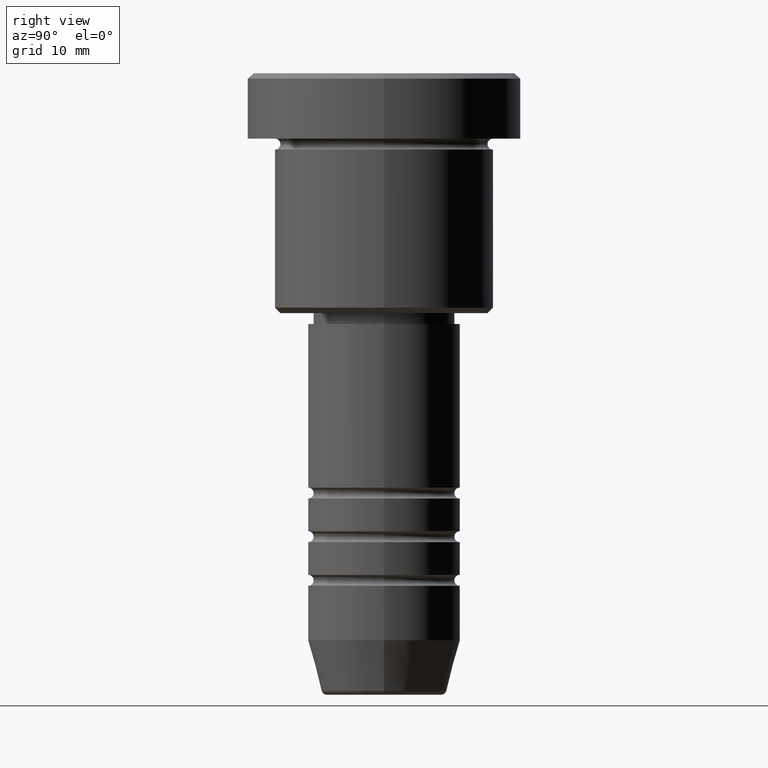
[diagram: clean part render]
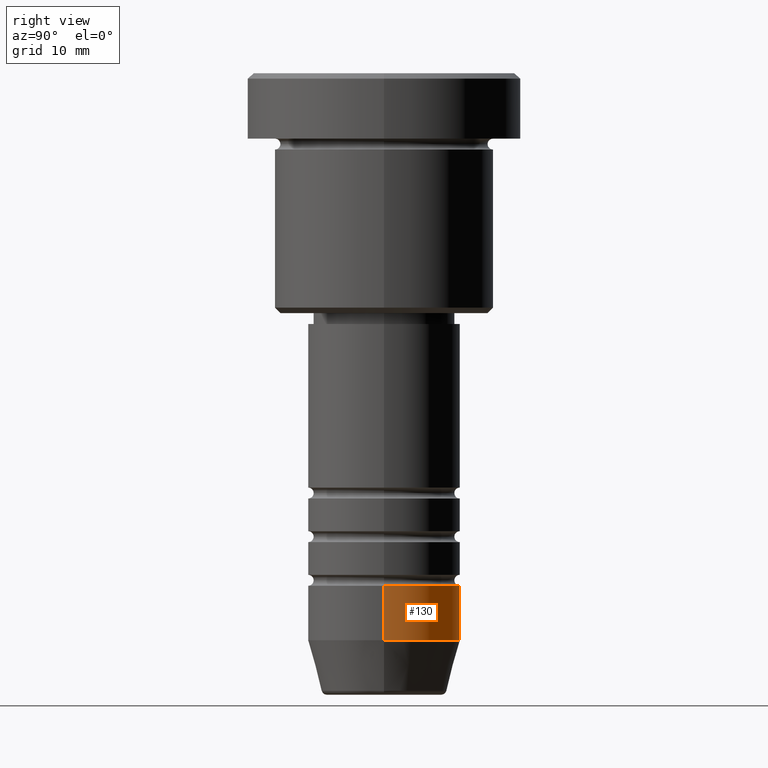
[diagram: same view with one face highlighted and labeled with its STEP entity id]
A machine part, right view. The second image highlights one B-rep face of the part: STEP entity #130.
In plain terms, the highlighted cylindrical surface (partial cylindrical patch) has radius 7 mm, axis along (-0, -0, 1).
Its self-contained STEP definition (entity closure, byte-faithful):
#51 = LINE ( 'NONE', #331, #1005 ) ;
#55 = LINE ( 'NONE', #342, #412 ) ;
#130 = ADVANCED_FACE ( 'NONE', ( #371 ), #367, .T. ) ;
#294 = ORIENTED_EDGE ( 'NONE', *, *, #1097, .T. ) ;
#296 = ORIENTED_EDGE ( 'NONE', *, *, #420, .T. ) ;
#317 = DIRECTION ( 'NONE',  ( 1.000000000000000000, 0.000000000000000000, 0.000000000000000000 ) ) ;
#331 = CARTESIAN_POINT ( 'NONE',  ( -7.000000000000000000, 8.572527594031473190E-16, 0.000000000000000000 ) ) ;
#342 = CARTESIAN_POINT ( 'NONE',  ( 7.000000000000000000, 0.000000000000000000, 0.000000000000000000 ) ) ;
#358 = AXIS2_PLACEMENT_3D ( 'NONE', #816, #828, #1113 ) ;
#363 = CARTESIAN_POINT ( 'NONE',  ( -7.000000000000000000, 8.572527594031473190E-16, -47.00000000000000711 ) ) ;
#367 = CYLINDRICAL_SURFACE ( 'NONE', #358, 7.000000000000000000 ) ;
#371 = FACE_OUTER_BOUND ( 'NONE', #827, .T. ) ;
#381 = VERTEX_POINT ( 'NONE', #363 ) ;
#412 = VECTOR ( 'NONE', #1168, 1000.000000000000000 ) ;
#413 = DIRECTION ( 'NONE',  ( -0.000000000000000000, -0.000000000000000000, 1.000000000000000000 ) ) ;
#420 = EDGE_CURVE ( 'NONE', #470, #381, #51, .T. ) ;
#433 = CIRCLE ( 'NONE', #1117, 7.000000000000000000 ) ;
#456 = AXIS2_PLACEMENT_3D ( 'NONE', #600, #413, #317 ) ;
#470 = VERTEX_POINT ( 'NONE', #1088 ) ;
#514 = DIRECTION ( 'NONE',  ( 1.000000000000000000, 0.000000000000000000, 0.000000000000000000 ) ) ;
#548 = EDGE_CURVE ( 'NONE', #818, #381, #711, .T. ) ;
#600 = CARTESIAN_POINT ( 'NONE',  ( 0.000000000000000000, 0.000000000000000000, -47.00000000000000711 ) ) ;
#610 = CARTESIAN_POINT ( 'NONE',  ( 0.000000000000000000, 0.000000000000000000, -52.00000000000000711 ) ) ;
#635 = VERTEX_POINT ( 'NONE', #1035 ) ;
#711 = CIRCLE ( 'NONE', #456, 7.000000000000000000 ) ;
#743 = ORIENTED_EDGE ( 'NONE', *, *, #788, .F. ) ;
#786 = DIRECTION ( 'NONE',  ( -0.000000000000000000, -0.000000000000000000, 1.000000000000000000 ) ) ;
#788 = EDGE_CURVE ( 'NONE', #635, #818, #55, .T. ) ;
#807 = CARTESIAN_POINT ( 'NONE',  ( 7.000000000000000000, 0.000000000000000000, -47.00000000000000711 ) ) ;
#816 = CARTESIAN_POINT ( 'NONE',  ( 0.000000000000000000, 0.000000000000000000, 0.000000000000000000 ) ) ;
#818 = VERTEX_POINT ( 'NONE', #807 ) ;
#827 = EDGE_LOOP ( 'NONE', ( #294, #296, #919, #743 ) ) ;
#828 = DIRECTION ( 'NONE',  ( -0.000000000000000000, -0.000000000000000000, 1.000000000000000000 ) ) ;
#919 = ORIENTED_EDGE ( 'NONE', *, *, #548, .F. ) ;
#1005 = VECTOR ( 'NONE', #786, 1000.000000000000000 ) ;
#1035 = CARTESIAN_POINT ( 'NONE',  ( 7.000000000000000000, 0.000000000000000000, -52.00000000000000711 ) ) ;
#1059 = DIRECTION ( 'NONE',  ( -0.000000000000000000, -0.000000000000000000, 1.000000000000000000 ) ) ;
#1088 = CARTESIAN_POINT ( 'NONE',  ( -7.000000000000000000, 8.572527594031473190E-16, -52.00000000000000711 ) ) ;
#1097 = EDGE_CURVE ( 'NONE', #635, #470, #433, .T. ) ;
#1113 = DIRECTION ( 'NONE',  ( 1.000000000000000000, 0.000000000000000000, 0.000000000000000000 ) ) ;
#1117 = AXIS2_PLACEMENT_3D ( 'NONE', #610, #1059, #514 ) ;
#1168 = DIRECTION ( 'NONE',  ( -0.000000000000000000, -0.000000000000000000, 1.000000000000000000 ) ) ;